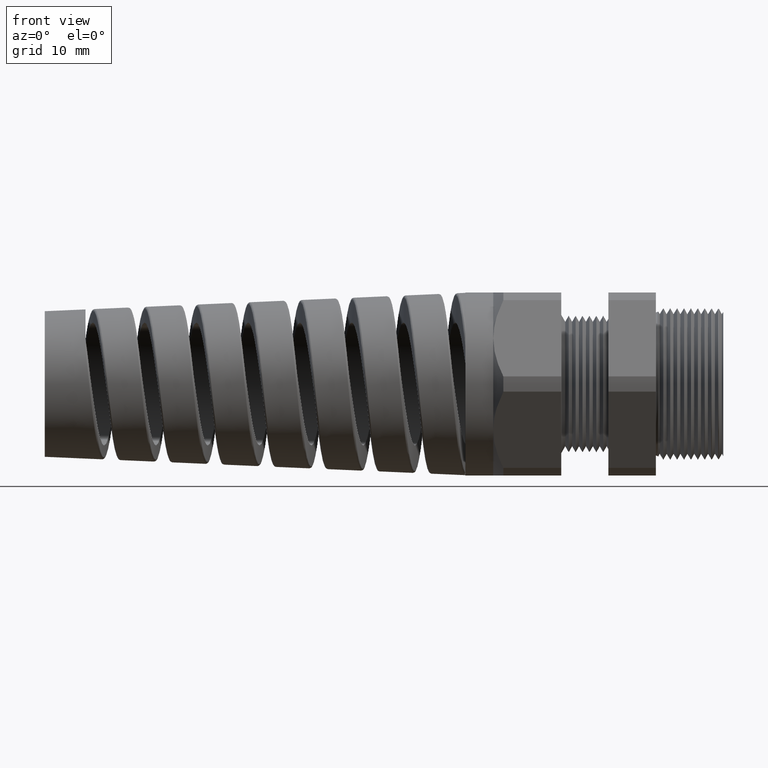
[diagram: clean part render]
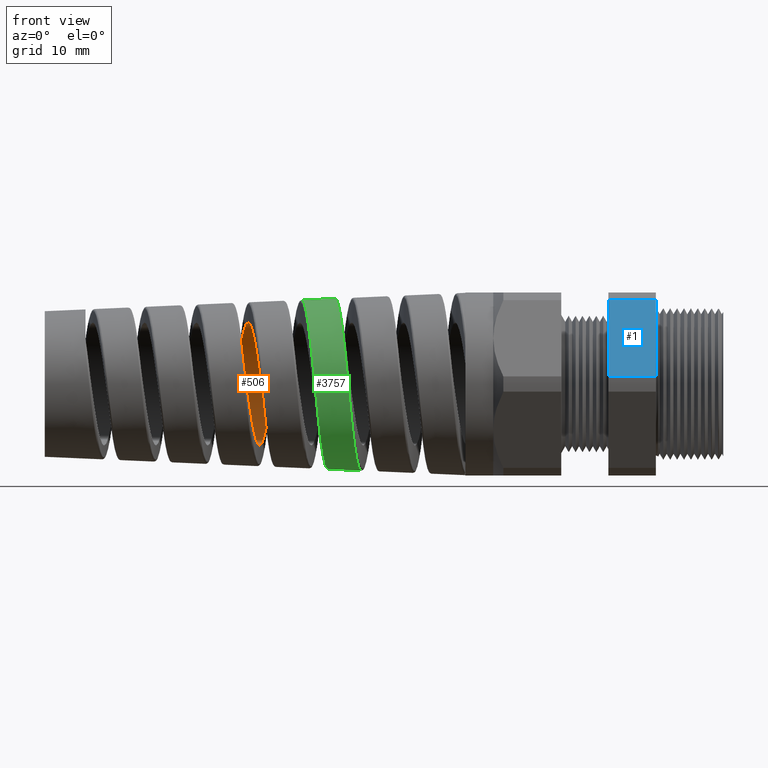
[diagram: same view with three faces highlighted in distinct colors, each labeled with its STEP entity id]
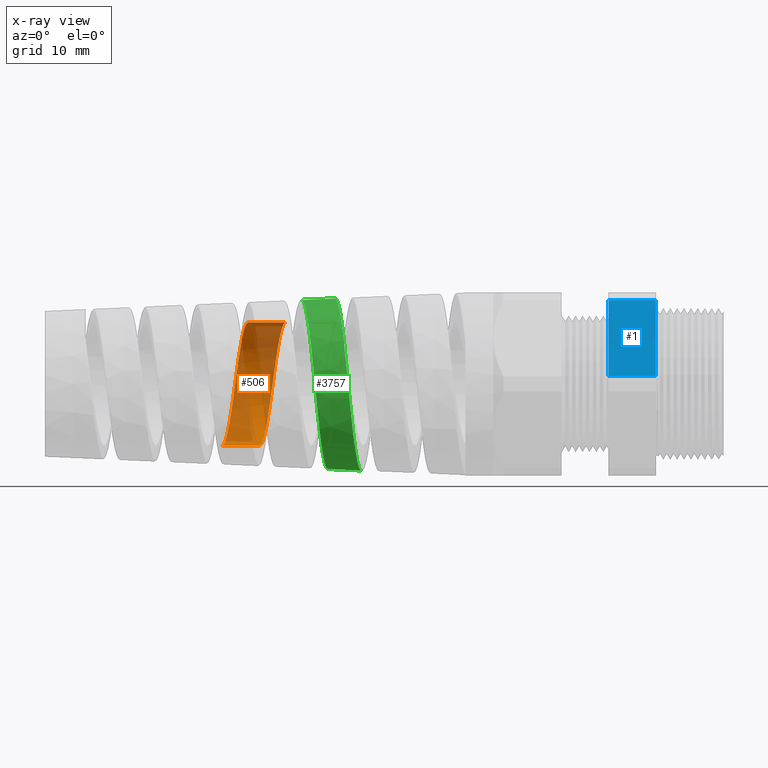
[diagram: x-ray of the same camera — body ghosted, the three highlighted faces saturated]
A machine part, front view with three faces highlighted in distinct colors.
The next image is the same camera in x-ray (body ghosted, the three faces saturated) — at least one of them is partly hidden behind the body in this view.
Their STEP definitions:

[orange] entity #506 — the highlighted cylindrical surface (partial cylindrical patch) has radius 9.0424 mm, axis along (1, 0, 0).
#431 = ORIENTED_EDGE ( 'NONE', *, *, #432, .T. ) ;
#432 = EDGE_CURVE ( 'NONE', #4030, #4079, #7712, .T. ) ;
#506 = ADVANCED_FACE ( 'NONE', ( #8227 ), #8255, .F. ) ;
#507 = EDGE_LOOP ( 'NONE', ( #508, #509, #511, #431 ) ) ;
#508 = ORIENTED_EDGE ( 'NONE', *, *, #4027, .F. ) ;
#509 = ORIENTED_EDGE ( 'NONE', *, *, #510, .T. ) ;
#510 = EDGE_CURVE ( 'NONE', #4081, #3956, #8250, .T. ) ;
#511 = ORIENTED_EDGE ( 'NONE', *, *, #4015, .T. ) ;
#3956 = VERTEX_POINT ( 'NONE', #11577 ) ;
#4015 = EDGE_CURVE ( 'NONE', #3956, #4030, #11892, .T. ) ;
#4027 = EDGE_CURVE ( 'NONE', #4081, #4079, #11970, .T. ) ;
#4030 = VERTEX_POINT ( 'NONE', #11966 ) ;
#4079 = VERTEX_POINT ( 'NONE', #12211 ) ;
#4081 = VERTEX_POINT ( 'NONE', #12278 ) ;
#7704 = CARTESIAN_POINT ( 'NONE',  ( -2.588058300756999500, 0.1255374151911246600, -0.3333363265361589700 ) ) ;
#7705 = CARTESIAN_POINT ( 'NONE',  ( -2.589640082266339200, 0.1144257403103962300, -0.3373110450831110500 ) ) ;
#7706 = CARTESIAN_POINT ( 'NONE',  ( -2.592769721519402500, 0.09210546711105217800, -0.3440764073703654900 ) ) ;
#7707 = CARTESIAN_POINT ( 'NONE',  ( -2.595882672592794800, 0.06957135075506019900, -0.3497119567977191000 ) ) ;
#7708 = CARTESIAN_POINT ( 'NONE',  ( -2.598992154035647300, 0.04662076965795574500, -0.3531259007206738500 ) ) ;
#7709 = CARTESIAN_POINT ( 'NONE',  ( -2.602114730385442200, 0.02346165782294322100, -0.3554165844969625100 ) ) ;
#7710 = CARTESIAN_POINT ( 'NONE',  ( -2.603688644498007900, 0.01173199416358084800, -0.3559999999999806700 ) ) ;
#7711 = CARTESIAN_POINT ( 'NONE',  ( -2.605262965233127400, 5.842345059044108700E-013, -0.3559999999999999800 ) ) ;
#7712 = B_SPLINE_CURVE_WITH_KNOTS ( 'NONE', 3,
 ( #7711, #7710, #7709, #7708, #7707, #7706, #7705, #7704, #7777, #7776, #7775, #7774, #7773, #7772, #7771, #7770, #7769, #7768, #7767, #7766, #7765, #7764, #7763, #7762, #7761, #7760, #7759, #7758, #7757, #7756, #7755, #7754, #7753, #7752, #7751, #7750, #7749, #7748, #7747, #7746, #7745, #7744, #7743, #7742, #7741 ),
 .UNSPECIFIED., .F., .F.,
 ( 4, 2, 1, 2, 2, 2, 2, 2, 2, 2, 2, 2, 2, 2, 2, 2, 2, 2, 2, 2, 2, 2, 4 ),
 ( 0.1913456243594174600, 0.1922352419578659000, 0.1931248595563143400, 0.1940144771547627800, 0.1949040947532112200, 0.1966833299501081200, 0.1984625651470050000, 0.2002418003439018800, 0.2011314179423503200, 0.2020210355407987500, 0.2038002707376956300, 0.2055795059345925400, 0.2064691235330409800, 0.2073587411314893900, 0.2091379763283862900, 0.2109172115252831700, 0.2126964467221800500, 0.2135860643206284900, 0.2144756819190769500, 0.2162549171159738300, 0.2180341523128707400, 0.2189237699113191800, 0.2198133875097676400 ),
 .UNSPECIFIED. ) ;
#7741 = CARTESIAN_POINT ( 'NONE',  ( -2.455194617607312500, 4.797850723997763300E-013, 0.3559999999999998200 ) ) ;
#7742 = CARTESIAN_POINT ( 'NONE',  ( -2.456758964248498200, 0.01165908351804917700, 0.3559999999999843300 ) ) ;
#7743 = CARTESIAN_POINT ( 'NONE',  ( -2.458340073502764100, 0.02344329785348109000, 0.3554197981418403300 ) ) ;
#7744 = CARTESIAN_POINT ( 'NONE',  ( -2.461479002432248400, 0.04672353271327530500, 0.3531143336317927300 ) ) ;
#7745 = CARTESIAN_POINT ( 'NONE',  ( -2.463038256526357600, 0.05823092676476685600, 0.3513968394085299500 ) ) ;
#7746 = CARTESIAN_POINT ( 'NONE',  ( -2.467708383377984000, 0.09236170625915128600, 0.3445919812323701100 ) ) ;
#7747 = CARTESIAN_POINT ( 'NONE',  ( -2.470810512429312000, 0.1145975589729101000, 0.3378678886742327900 ) ) ;
#7748 = CARTESIAN_POINT ( 'NONE',  ( -2.477111267551890700, 0.1579800309239773900, 0.3198900132060901700 ) ) ;
#7749 = CARTESIAN_POINT ( 'NONE',  ( -2.480227827331087800, 0.1785490667816322700, 0.3088591541507040300 ) ) ;
#7750 = CARTESIAN_POINT ( 'NONE',  ( -2.484895547855639800, 0.2074679768682410100, 0.2895297483196138700 ) ) ;
#7751 = CARTESIAN_POINT ( 'NONE',  ( -2.486452567330835500, 0.2168007962505145200, 0.2826119879218528300 ) ) ;
#7752 = CARTESIAN_POINT ( 'NONE',  ( -2.489583540434637100, 0.2348396398335701700, 0.2678105011660998300 ) ) ;
#7753 = CARTESIAN_POINT ( 'NONE',  ( -2.491165626985470300, 0.2435862608103514000, 0.2598813774041983100 ) ) ;
#7754 = CARTESIAN_POINT ( 'NONE',  ( -2.495870048659745200, 0.2683676136725935400, 0.2350770321404555800 ) ) ;
#7755 = CARTESIAN_POINT ( 'NONE',  ( -2.498967883353122600, 0.2830711092299750800, 0.2171331110047142200 ) ) ;
#7756 = CARTESIAN_POINT ( 'NONE',  ( -2.505204721888603500, 0.3088964461710150800, 0.1784909698505535200 ) ) ;
#7757 = CARTESIAN_POINT ( 'NONE',  ( -2.508371039982964400, 0.3200714167107469600, 0.1575784303674544800 ) ) ;
#7758 = CARTESIAN_POINT ( 'NONE',  ( -2.514610782130706200, 0.3378493239893885500, 0.1146058802688953900 ) ) ;
#7759 = CARTESIAN_POINT ( 'NONE',  ( -2.517708166779331500, 0.3445884227954659800, 0.09241263041882284700 ) ) ;
#7760 = CARTESIAN_POINT ( 'NONE',  ( -2.522408301282094400, 0.3514275776553766300, 0.05806011117516423500 ) ) ;
#7761 = CARTESIAN_POINT ( 'NONE',  ( -2.523990848902510000, 0.3531591033938716300, 0.04637921325243144600 ) ) ;
#7762 = CARTESIAN_POINT ( 'NONE',  ( -2.527124703250969200, 0.3554394418804833200, 0.02313410658677568900 ) ) ;
#7763 = CARTESIAN_POINT ( 'NONE',  ( -2.528682371298846700, 0.3560023499608324600, 0.01152418667711453300 ) ) ;
#7764 = CARTESIAN_POINT ( 'NONE',  ( -2.533350321565377000, 0.3559952780125688100, -0.02326547350838919700 ) ) ;
#7765 = CARTESIAN_POINT ( 'NONE',  ( -2.536457433106064800, 0.3537425288732004000, -0.04642229489545348500 ) ) ;
#7766 = CARTESIAN_POINT ( 'NONE',  ( -2.542767214148643300, 0.3445647304205294900, -0.09254162710475337400 ) ) ;
#7767 = CARTESIAN_POINT ( 'NONE',  ( -2.545870425009987100, 0.3377882780981756300, -0.1147742022997402200 ) ) ;
#7768 = CARTESIAN_POINT ( 'NONE',  ( -2.550538968514637800, 0.3244763503929402600, -0.1469204125341193300 ) ) ;
#7769 = CARTESIAN_POINT ( 'NONE',  ( -2.552097281704470300, 0.3195106909237094800, -0.1574339433295144900 ) ) ;
#7770 = CARTESIAN_POINT ( 'NONE',  ( -2.555233208672073300, 0.3084996587719225900, -0.1780463104488109500 ) ) ;
#7771 = CARTESIAN_POINT ( 'NONE',  ( -2.556815673891971000, 0.3024286926234400200, -0.1881729729598848600 ) ) ;
#7772 = CARTESIAN_POINT ( 'NONE',  ( -2.561513160536102300, 0.2829697337934694000, -0.2172759932776563400 ) ) ;
#7773 = CARTESIAN_POINT ( 'NONE',  ( -2.564609771302916100, 0.2682509019515763600, -0.2351988208704081100 ) ) ;
#7774 = CARTESIAN_POINT ( 'NONE',  ( -2.570851865881368600, 0.2353664511366112300, -0.2681038332736436800 ) ) ;
#7775 = CARTESIAN_POINT ( 'NONE',  ( -2.574018494357527100, 0.2170386431017708700, -0.2831430204070185500 ) ) ;
#7776 = CARTESIAN_POINT ( 'NONE',  ( -2.580252930685929000, 0.1783990444583968800, -0.3089490630201007200 ) ) ;
#7777 = CARTESIAN_POINT ( 'NONE',  ( -2.583350834729506200, 0.1579446371576399800, -0.3199007477313860500 ) ) ;
#8227 = FACE_OUTER_BOUND ( 'NONE', #507, .T. ) ;
#8238 = CARTESIAN_POINT ( 'NONE',  ( -2.712871846001793300, 0.2683967611726232300, 0.2350566343029512900 ) ) ;
#8239 = CARTESIAN_POINT ( 'NONE',  ( -2.706569610542169700, 0.2351635669462939500, 0.2683030740019231600 ) ) ;
#8240 = CARTESIAN_POINT ( 'NONE',  ( -2.703469243143174600, 0.2171833814658454300, 0.2830294006592599100 ) ) ;
#8241 = CARTESIAN_POINT ( 'NONE',  ( -2.698804113444630600, 0.1882551323016893600, 0.3023748846509795600 ) ) ;
#8242 = CARTESIAN_POINT ( 'NONE',  ( -2.697246743610998800, 0.1782836848846134900, 0.3083627526450868900 ) ) ;
#8243 = CARTESIAN_POINT ( 'NONE',  ( -2.694112416002199400, 0.1576697091581493200, 0.3193946185033113000 ) ) ;
#8244 = CARTESIAN_POINT ( 'NONE',  ( -2.692531378505624900, 0.1469974380314877900, 0.3244439611646978700 ) ) ;
#8245 = CARTESIAN_POINT ( 'NONE',  ( -2.687838801437250500, 0.1146586132422661600, 0.3378371283704689800 ) ) ;
#8246 = CARTESIAN_POINT ( 'NONE',  ( -2.684744743560596900, 0.09246309314700303100, 0.3445692855413835500 ) ) ;
#8247 = CARTESIAN_POINT ( 'NONE',  ( -2.678506281864904400, 0.04682558629164183800, 0.3536732681462578200 ) ) ;
#8248 = CARTESIAN_POINT ( 'NONE',  ( -2.675342649173015900, 0.02323129742777716900, 0.3560000000000088600 ) ) ;
#8249 = CARTESIAN_POINT ( 'NONE',  ( -2.672228253862314800, -1.328104976169842200E-013, 0.3560000000000002100 ) ) ;
#8250 = B_SPLINE_CURVE_WITH_KNOTS ( 'NONE', 3,
 ( #8249, #8248, #8247, #8246, #8245, #8244, #8243, #8242, #8241, #8240, #8239, #8238, #8313, #8312, #8311, #8310, #8309, #8308, #8307, #8306, #8305, #8304, #8303, #8302, #8301, #8300, #8299, #8298, #8297, #8296, #8295, #8294, #8293, #8292, #8291, #8290, #8289, #8288, #8287, #8286, #8285, #8284 ),
 .UNSPECIFIED., .F., .F.,
 ( 4, 2, 2, 2, 2, 2, 2, 2, 2, 2, 2, 2, 2, 2, 2, 2, 2, 2, 2, 2, 4 ),
 ( 0.2555521806162086600, 0.2573350309079793800, 0.2591178811997501600, 0.2600093063456355200, 0.2609007314915208800, 0.2626835817832916000, 0.2644664320750623200, 0.2653578572209476800, 0.2662492823668330400, 0.2680321326586038200, 0.2698149829503745400, 0.2715978332421452600, 0.2724892583880306200, 0.2733806835339159800, 0.2751635338256867000, 0.2769463841174574800, 0.2778378092633428400, 0.2787292344092282000, 0.2805120847009989200, 0.2822949349927697000, 0.2840777852845404200 ),
 .UNSPECIFIED. ) ;
#8251 = DIRECTION ( 'NONE',  ( 0.0000000000000000000, 0.0000000000000000000, -1.000000000000000000 ) ) ;
#8252 = DIRECTION ( 'NONE',  ( 1.000000000000000000, 0.0000000000000000000, 0.0000000000000000000 ) ) ;
#8253 = CARTESIAN_POINT ( 'NONE',  ( 0.09602717987635048200, 0.0000000000000000000, 0.0000000000000000000 ) ) ;
#8254 = AXIS2_PLACEMENT_3D ( 'NONE', #8253, #8252, #8251 ) ;
#8255 = CYLINDRICAL_SURFACE ( 'NONE', #8254, 0.3559999999999999800 ) ;
#8284 = CARTESIAN_POINT ( 'NONE',  ( -2.822159956129014700, 4.852839836151481800E-013, -0.3560000000000000900 ) ) ;
#8285 = CARTESIAN_POINT ( 'NONE',  ( -2.819021819547832000, 0.02340949502332323500, -0.3559999999999683400 ) ) ;
#8286 = CARTESIAN_POINT ( 'NONE',  ( -2.815925157162083400, 0.04650602325123237600, -0.3537127300167002300 ) ) ;
#8287 = CARTESIAN_POINT ( 'NONE',  ( -2.809697390097454200, 0.09207215863489387500, -0.3446711812420965000 ) ) ;
#8288 = CARTESIAN_POINT ( 'NONE',  ( -2.806534863695327800, 0.1147592199642840800, -0.3377987681894283900 ) ) ;
#8289 = CARTESIAN_POINT ( 'NONE',  ( -2.800294772739699000, 0.1577628593627296800, -0.3199821347556792700 ) ) ;
#8290 = CARTESIAN_POINT ( 'NONE',  ( -2.797200202759958300, 0.1782222537088115600, -0.3090582355348829900 ) ) ;
#8291 = CARTESIAN_POINT ( 'NONE',  ( -2.792509383668043900, 0.2073265739947740000, -0.2896337909893030900 ) ) ;
#8292 = CARTESIAN_POINT ( 'NONE',  ( -2.790929040594535100, 0.2168098431521451000, -0.2826061887351118400 ) ) ;
#8293 = CARTESIAN_POINT ( 'NONE',  ( -2.787793664414399700, 0.2348897803745577900, -0.2677677297110974700 ) ) ;
#8294 = CARTESIAN_POINT ( 'NONE',  ( -2.786235965763902600, 0.2435071117495804800, -0.2599516833510279200 ) ) ;
#8295 = CARTESIAN_POINT ( 'NONE',  ( -2.781570209887111100, 0.2681191232358248200, -0.2353433669213471600 ) ) ;
#8296 = CARTESIAN_POINT ( 'NONE',  ( -2.778469848047620900, 0.2828856713930608700, -0.2174019290316200900 ) ) ;
#8297 = CARTESIAN_POINT ( 'NONE',  ( -2.772171272658247300, 0.3090010518207686500, -0.1783430733160978100 ) ) ;
#8298 = CARTESIAN_POINT ( 'NONE',  ( -2.769060175600740700, 0.3199751102197548900, -0.1577652059249336800 ) ) ;
#8299 = CARTESIAN_POINT ( 'NONE',  ( -2.764396290099594200, 0.3332989239104294800, -0.1256276647889313600 ) ) ;
#8300 = CARTESIAN_POINT ( 'NONE',  ( -2.762840170570397500, 0.3372218632710287100, -0.1146893645844773000 ) ) ;
#8301 = CARTESIAN_POINT ( 'NONE',  ( -2.759710569221188500, 0.3440100949561861700, -0.09235415521248231700 ) ) ;
#8302 = CARTESIAN_POINT ( 'NONE',  ( -2.758129407493230100, 0.3468828759323221400, -0.08090001860906004300 ) ) ;
#8303 = CARTESIAN_POINT ( 'NONE',  ( -2.753430151347194200, 0.3537205881253522300, -0.04651791096292925300 ) ) ;
#8304 = CARTESIAN_POINT ( 'NONE',  ( -2.750335237239457200, 0.3559879972746894900, -0.02342898587798301900 ) ) ;
#8305 = CARTESIAN_POINT ( 'NONE',  ( -2.744102333568295900, 0.3560119085573247300, 0.02306279576040249500 ) ) ;
#8306 = CARTESIAN_POINT ( 'NONE',  ( -2.740938026628621000, 0.3536934761794672300, 0.04666398048186461800 ) ) ;
#8307 = CARTESIAN_POINT ( 'NONE',  ( -2.734704423837953000, 0.3446193904982260400, 0.09227176089659572300 ) ) ;
#8308 = CARTESIAN_POINT ( 'NONE',  ( -2.731609644567114100, 0.3379009407361932000, 0.1144758483443580200 ) ) ;
#8309 = CARTESIAN_POINT ( 'NONE',  ( -2.726911596356519600, 0.3245076576625156600, 0.1468578275732302700 ) ) ;
#8310 = CARTESIAN_POINT ( 'NONE',  ( -2.725330183382749500, 0.3194605779817840700, 0.1575349802189352500 ) ) ;
#8311 = CARTESIAN_POINT ( 'NONE',  ( -2.722199657900354900, 0.3084514694989680700, 0.1781292279244567600 ) ) ;
#8312 = CARTESIAN_POINT ( 'NONE',  ( -2.720643488937810200, 0.3024732972460671400, 0.1880967917125647700 ) ) ;
#8313 = CARTESIAN_POINT ( 'NONE',  ( -2.715979568945030600, 0.2831480124816568300, 0.2170281028474377000 ) ) ;
#11577 = CARTESIAN_POINT ( 'NONE',  ( -2.822159956129014700, 4.852839836151481800E-013, -0.3560000000000000900 ) ) ;
#11885 = DIRECTION ( 'NONE',  ( 1.000000000000000000, 0.0000000000000000000, 0.0000000000000000000 ) ) ;
#11886 = VECTOR ( 'NONE', #11885, 39.37007874015748100 ) ;
#11887 = CARTESIAN_POINT ( 'NONE',  ( 0.09602717987635048200, 0.0000000000000000000, -0.3559999999999999800 ) ) ;
#11892 = LINE ( 'NONE', #11887, #11886 ) ;
#11966 = CARTESIAN_POINT ( 'NONE',  ( -2.605262965233127400, 5.842345059044108700E-013, -0.3559999999999999800 ) ) ;
#11967 = DIRECTION ( 'NONE',  ( 1.000000000000000000, 0.0000000000000000000, 0.0000000000000000000 ) ) ;
#11968 = VECTOR ( 'NONE', #11967, 39.37007874015748100 ) ;
#11969 = CARTESIAN_POINT ( 'NONE',  ( 0.09602717987635048200, 4.359742604964577000E-017, 0.3559999999999999800 ) ) ;
#11970 = LINE ( 'NONE', #11969, #11968 ) ;
#12211 = CARTESIAN_POINT ( 'NONE',  ( -2.455194617607312500, 4.797850723997763300E-013, 0.3559999999999998200 ) ) ;
#12278 = CARTESIAN_POINT ( 'NONE',  ( -2.672228253862314800, -1.328104976169842200E-013, 0.3560000000000002100 ) ) ;

[blue] entity #1 — the highlighted planar face has unit normal (0, -0.866, 0.5).
#1 = ADVANCED_FACE ( 'NONE', ( #4056 ), #4055, .T. ) ;
#2 = ORIENTED_EDGE ( 'NONE', *, *, #31, .F. ) ;
#3 = EDGE_LOOP ( 'NONE', ( #2, #5, #4, #803 ) ) ;
#4 = ORIENTED_EDGE ( 'NONE', *, *, #6, .T. ) ;
#5 = ORIENTED_EDGE ( 'NONE', *, *, #176, .F. ) ;
#6 = EDGE_CURVE ( 'NONE', #174, #802, #4049, .T. ) ;
#13 = VERTEX_POINT ( 'NONE', #4118 ) ;
#31 = EDGE_CURVE ( 'NONE', #177, #13, #4109, .T. ) ;
#174 = VERTEX_POINT ( 'NONE', #7526 ) ;
#176 = EDGE_CURVE ( 'NONE', #174, #177, #7525, .T. ) ;
#177 = VERTEX_POINT ( 'NONE', #7521 ) ;
#791 = EDGE_CURVE ( 'NONE', #13, #802, #9144, .T. ) ;
#802 = VERTEX_POINT ( 'NONE', #9193 ) ;
#803 = ORIENTED_EDGE ( 'NONE', *, *, #791, .F. ) ;
#4047 = VECTOR ( 'NONE', #4122, 39.37007874015748100 ) ;
#4048 = CARTESIAN_POINT ( 'NONE',  ( 0.08000000000000023800, -0.3313250556190262000, 0.4861281698472627600 ) ) ;
#4049 = LINE ( 'NONE', #4048, #4047 ) ;
#4051 = DIRECTION ( 'NONE',  ( 0.0000000000000000000, -0.4999999999999998300, -0.8660254037844388200 ) ) ;
#4052 = DIRECTION ( 'NONE',  ( 0.0000000000000000000, -0.8660254037844388200, 0.4999999999999998300 ) ) ;
#4053 = CARTESIAN_POINT ( 'NONE',  ( 0.08000000000000023800, -0.5866618723924791300, 0.04387183015273706000 ) ) ;
#4054 = AXIS2_PLACEMENT_3D ( 'NONE', #4053, #4052, #4051 ) ;
#4055 = PLANE ( 'NONE',  #4054 ) ;
#4056 = FACE_OUTER_BOUND ( 'NONE', #3, .T. ) ;
#4106 = DIRECTION ( 'NONE',  ( -1.000000000000000000, 0.0000000000000000000, 0.0000000000000000000 ) ) ;
#4107 = VECTOR ( 'NONE', #4106, 39.37007874015748100 ) ;
#4108 = CARTESIAN_POINT ( 'NONE',  ( 0.08000000000000023800, -0.5866618723924791300, 0.04387183015273703200 ) ) ;
#4109 = LINE ( 'NONE', #4108, #4107 ) ;
#4118 = CARTESIAN_POINT ( 'NONE',  ( -0.5855905511811022600, -0.5866618723924791300, 0.04387183015273703200 ) ) ;
#4122 = DIRECTION ( 'NONE',  ( -1.000000000000000000, 0.0000000000000000000, 0.0000000000000000000 ) ) ;
#7521 = CARTESIAN_POINT ( 'NONE',  ( -0.3100000000000000000, -0.5866618723924791300, 0.04387183015273703200 ) ) ;
#7522 = DIRECTION ( 'NONE',  ( 0.0000000000000000000, -0.4999999999999998300, -0.8660254037844388200 ) ) ;
#7523 = VECTOR ( 'NONE', #7522, 39.37007874015748100 ) ;
#7524 = CARTESIAN_POINT ( 'NONE',  ( -0.3100000000000000000, -0.1939934640057525700, 0.7239934640057522600 ) ) ;
#7525 = LINE ( 'NONE', #7524, #7523 ) ;
#7526 = CARTESIAN_POINT ( 'NONE',  ( -0.3100000000000000000, -0.3313250556190262000, 0.4861281698472627600 ) ) ;
#9142 = VECTOR ( 'NONE', #9206, 39.37007874015748100 ) ;
#9143 = CARTESIAN_POINT ( 'NONE',  ( -0.5855905511811022600, -0.1939934640057527100, 0.7239934640057522600 ) ) ;
#9144 = LINE ( 'NONE', #9143, #9142 ) ;
#9193 = CARTESIAN_POINT ( 'NONE',  ( -0.5855905511811022600, -0.3313250556190262000, 0.4861281698472627600 ) ) ;
#9206 = DIRECTION ( 'NONE',  ( 0.0000000000000000000, 0.4999999999999998300, 0.8660254037844388200 ) ) ;

[green] entity #3757 — the highlighted conical surface has half-angle 2.5 deg.
#3745 = EDGE_CURVE ( 'NONE', #3878, #3890, #10100, .T. ) ;
#3746 = EDGE_CURVE ( 'NONE', #3887, #3871, #10132, .T. ) ;
#3757 = ADVANCED_FACE ( 'NONE', ( #10219 ), #10345, .T. ) ;
#3758 = EDGE_LOOP ( 'NONE', ( #3759, #3822, #3824, #3816 ) ) ;
#3759 = ORIENTED_EDGE ( 'NONE', *, *, #3889, .F. ) ;
#3816 = ORIENTED_EDGE ( 'NONE', *, *, #3745, .T. ) ;
#3822 = ORIENTED_EDGE ( 'NONE', *, *, #3746, .T. ) ;
#3824 = ORIENTED_EDGE ( 'NONE', *, *, #3880, .T. ) ;
#3871 = VERTEX_POINT ( 'NONE', #10899 ) ;
#3878 = VERTEX_POINT ( 'NONE', #10678 ) ;
#3880 = EDGE_CURVE ( 'NONE', #3871, #3878, #10676, .T. ) ;
#3887 = VERTEX_POINT ( 'NONE', #11035 ) ;
#3889 = EDGE_CURVE ( 'NONE', #3887, #3890, #11053, .T. ) ;
#3890 = VERTEX_POINT ( 'NONE', #11049 ) ;
#10058 = CARTESIAN_POINT ( 'NONE',  ( -2.137965897996970500, -0.2906283891790600300, 0.4028413230129057600 ) ) ;
#10059 = CARTESIAN_POINT ( 'NONE',  ( -2.136403034704178700, -0.3037147281775621800, 0.3931603644316561400 ) ) ;
#10060 = CARTESIAN_POINT ( 'NONE',  ( -2.133258538174852800, -0.3290210502620022900, 0.3724234373861434200 ) ) ;
#10061 = CARTESIAN_POINT ( 'NONE',  ( -2.131671804358067600, -0.3412729738382395100, 0.3613239325853367400 ) ) ;
#10062 = CARTESIAN_POINT ( 'NONE',  ( -2.126962296454944400, -0.3759266743866878600, 0.3266596159679717700 ) ) ;
#10063 = CARTESIAN_POINT ( 'NONE',  ( -2.123859010652847400, -0.3965123720425815500, 0.3015509590627010700 ) ) ;
#10064 = CARTESIAN_POINT ( 'NONE',  ( -2.119169470237253000, -0.4236505085154251800, 0.2609278223129933800 ) ) ;
#10065 = CARTESIAN_POINT ( 'NONE',  ( -2.117595857609861900, -0.4320914357926447000, 0.2468469787851209100 ) ) ;
#10066 = CARTESIAN_POINT ( 'NONE',  ( -2.114441236771424900, -0.4475692867391858300, 0.2178421415646317700 ) ) ;
#10067 = CARTESIAN_POINT ( 'NONE',  ( -2.112876529820654900, -0.4545301856097557800, 0.2030713550863270400 ) ) ;
#10068 = CARTESIAN_POINT ( 'NONE',  ( -2.108196842557551700, -0.4731533025308365900, 0.1579818482447574400 ) ) ;
#10069 = CARTESIAN_POINT ( 'NONE',  ( -2.105097248834057100, -0.4825770365884580200, 0.1268931251979530100 ) ) ;
#10070 = CARTESIAN_POINT ( 'NONE',  ( -2.100388247414732800, -0.4921279659234514800, 0.07869227019877786400 ) ) ;
#10071 = CARTESIAN_POINT ( 'NONE',  ( -2.098807592254914300, -0.4945317434452180500, 0.06235086537074831200 ) ) ;
#10072 = CARTESIAN_POINT ( 'NONE',  ( -2.095680385999257700, -0.4976883263864224600, 0.02986073963989358700 ) ) ;
#10073 = CARTESIAN_POINT ( 'NONE',  ( -2.094125003502254100, -0.4984621775340909400, 0.01362197324743450400 ) ) ;
#10074 = CARTESIAN_POINT ( 'NONE',  ( -2.091015961837691800, -0.4984279396465892700, -0.01884178774710237200 ) ) ;
#10075 = CARTESIAN_POINT ( 'NONE',  ( -2.089462475693839600, -0.4976198233943618900, -0.03506679875822924600 ) ) ;
#10076 = CARTESIAN_POINT ( 'NONE',  ( -2.086342662653632600, -0.4944032425371655500, -0.06750148540744664600 ) ) ;
#10077 = CARTESIAN_POINT ( 'NONE',  ( -2.084769155411423800, -0.4919791824320600100, -0.08378503658864795700 ) ) ;
#10078 = CARTESIAN_POINT ( 'NONE',  ( -2.080057292838782600, -0.4823202575480982600, -0.1320770379713764300 ) ) ;
#10079 = CARTESIAN_POINT ( 'NONE',  ( -2.076962923187026400, -0.4728279061895956400, -0.1631679382762953300 ) ) ;
#10080 = CARTESIAN_POINT ( 'NONE',  ( -2.072302592056910700, -0.4541554200993848100, -0.2081924140318209300 ) ) ;
#10081 = CARTESIAN_POINT ( 'NONE',  ( -2.070746307178754200, -0.4471869494500385600, -0.2229300262814043200 ) ) ;
#10082 = CARTESIAN_POINT ( 'NONE',  ( -2.067612544940617500, -0.4317212419859045600, -0.2518479947166860100 ) ) ;
#10083 = CARTESIAN_POINT ( 'NONE',  ( -2.066038534106312800, -0.4232318439283843100, -0.2659910643905295500 ) ) ;
#10084 = CARTESIAN_POINT ( 'NONE',  ( -2.061364939568459200, -0.3960283882850272300, -0.3066591797455376900 ) ) ;
#10085 = CARTESIAN_POINT ( 'NONE',  ( -2.058279382892390000, -0.3754345937579892100, -0.3317553845094183800 ) ) ;
#10086 = CARTESIAN_POINT ( 'NONE',  ( -2.053609853101566500, -0.3408661754212760600, -0.3663729608970711600 ) ) ;
#10087 = CARTESIAN_POINT ( 'NONE',  ( -2.052038127283818600, -0.3286574044649146500, -0.3774584613239611600 ) ) ;
#10088 = CARTESIAN_POINT ( 'NONE',  ( -2.048908922872082300, -0.3033142728508544400, -0.3982809744955191900 ) ) ;
#10089 = CARTESIAN_POINT ( 'NONE',  ( -2.047355681753559400, -0.2902214541892302300, -0.4079972039489062100 ) ) ;
#10090 = CARTESIAN_POINT ( 'NONE',  ( -2.042706894661902300, -0.2497161296582868200, -0.4351175720957393700 ) ) ;
#10091 = CARTESIAN_POINT ( 'NONE',  ( -2.039622455753594900, -0.2210882461060424700, -0.4505124384612539900 ) ) ;
#10092 = CARTESIAN_POINT ( 'NONE',  ( -2.034931060506482800, -0.1756456887304658800, -0.4694542805470138200 ) ) ;
#10093 = CARTESIAN_POINT ( 'NONE',  ( -2.033363598325827100, -0.1601462273804133700, -0.4750335672810687700 ) ) ;
#10094 = CARTESIAN_POINT ( 'NONE',  ( -2.030258425794779800, -0.1289701605714405100, -0.4845681336732299800 ) ) ;
#10095 = CARTESIAN_POINT ( 'NONE',  ( -2.027167769563764200, -0.09746973236944254900, -0.4925423114876067400 ) ) ;
#10096 = CARTESIAN_POINT ( 'NONE',  ( -2.024076482951221700, -0.06533178663270219900, -0.4974358501148498100 ) ) ;
#10097 = CARTESIAN_POINT ( 'NONE',  ( -2.020970529590265100, -0.03287161805036333000, -0.5007655564218577200 ) ) ;
#10098 = CARTESIAN_POINT ( 'NONE',  ( -2.019401688843614400, -0.01638902076667605300, -0.5016465099386855400 ) ) ;
#10099 = CARTESIAN_POINT ( 'NONE',  ( -2.017842514813689800, -6.848638462451441400E-013, -0.5017145849470122700 ) ) ;
#10100 = B_SPLINE_CURVE_WITH_KNOTS ( 'NONE', 3,
 ( #10099, #10098, #10097, #10096, #10095, #10094, #10093, #10092, #10091, #10090, #10089, #10088, #10087, #10086, #10085, #10084, #10083, #10082, #10081, #10080, #10079, #10078, #10077, #10076, #10075, #10074, #10073, #10072, #10071, #10070, #10069, #10068, #10067, #10066, #10065, #10064, #10063, #10062, #10061, #10060, #10059, #10058, #10141, #10140, #10139, #10138, #10137, #10136, #10135, #10134, #10133 ),
 .UNSPECIFIED., .F., .F.,
 ( 4, 2, 1, 2, 2, 2, 2, 2, 2, 2, 2, 2, 2, 2, 2, 2, 2, 2, 2, 2, 2, 2, 2, 2, 2, 4 ),
 ( 0.1635291858641698100, 0.1647792864953191200, 0.1660293871264684200, 0.1672794877576177200, 0.1685295883887670300, 0.1710297896510656300, 0.1722798902822149400, 0.1735299909133642400, 0.1760301921756628500, 0.1772802928068121500, 0.1785303934379614500, 0.1810305947002600600, 0.1822806953314093600, 0.1835307959625586700, 0.1847808965937079700, 0.1860309972248572800, 0.1885311984871558800, 0.1897812991183051900, 0.1910313997494544900, 0.1935316010117531000, 0.1947817016429024000, 0.1960318022740517000, 0.1985320035363503100, 0.2010322047986489200, 0.2022823054297982200, 0.2035324060609475200 ),
 .UNSPECIFIED. ) ;
#10101 = CARTESIAN_POINT ( 'NONE',  ( -2.257277562528408900, -0.4079174948588797900, -0.2751425398103519200 ) ) ;
#10102 = CARTESIAN_POINT ( 'NONE',  ( -2.260384337123129100, -0.4243781703473060200, -0.2477193332774996800 ) ) ;
#10103 = CARTESIAN_POINT ( 'NONE',  ( -2.263508771289566700, -0.4395361300074556700, -0.2193985282929917200 ) ) ;
#10104 = CARTESIAN_POINT ( 'NONE',  ( -2.265087905745378500, -0.4464918549238624500, -0.2047095146338194200 ) ) ;
#10105 = CARTESIAN_POINT ( 'NONE',  ( -2.269784488028470500, -0.4649720959536088900, -0.1601164958426296600 ) ) ;
#10106 = CARTESIAN_POINT ( 'NONE',  ( -2.272877773701460500, -0.4742432706170871000, -0.1295569974115656500 ) ) ;
#10107 = CARTESIAN_POINT ( 'NONE',  ( -2.279108913368003800, -0.4867859557611873300, -0.06681520029837513500 ) ) ;
#10108 = CARTESIAN_POINT ( 'NONE',  ( -2.282274324156248600, -0.4900120184971180100, -0.03433179148564825800 ) ) ;
#10109 = CARTESIAN_POINT ( 'NONE',  ( -2.288513392756008600, -0.4900430541179361400, 0.02968638985195439000 ) ) ;
#10110 = CARTESIAN_POINT ( 'NONE',  ( -2.291611305493199200, -0.4869518501333988100, 0.06146512872338597700 ) ) ;
#10111 = CARTESIAN_POINT ( 'NONE',  ( -2.296315894438575500, -0.4775896640454055400, 0.1087739667707167100 ) ) ;
#10112 = CARTESIAN_POINT ( 'NONE',  ( -2.297900259845631100, -0.4736497420184399000, 0.1245464773671152000 ) ) ;
#10113 = CARTESIAN_POINT ( 'NONE',  ( -2.301037489407943900, -0.4643269003044255800, 0.1553137378900434400 ) ) ;
#10114 = CARTESIAN_POINT ( 'NONE',  ( -2.302597179290197400, -0.4589368087320830900, 0.1703779333321524300 ) ) ;
#10115 = CARTESIAN_POINT ( 'NONE',  ( -2.307272263447820700, -0.4406252640605591300, 0.2146294457000134700 ) ) ;
#10116 = CARTESIAN_POINT ( 'NONE',  ( -2.310388433630149700, -0.4255542176724383400, 0.2429287624082703800 ) ) ;
#10117 = CARTESIAN_POINT ( 'NONE',  ( -2.316711424259904300, -0.3896046339935696500, 0.2967307181349701500 ) ) ;
#10118 = CARTESIAN_POINT ( 'NONE',  ( -2.319822836889681800, -0.3692760285501153200, 0.3214288115397921900 ) ) ;
#10119 = CARTESIAN_POINT ( 'NONE',  ( -2.324507029996885500, -0.3353902295694275400, 0.3552885877752291500 ) ) ;
#10120 = CARTESIAN_POINT ( 'NONE',  ( -2.326071166300091300, -0.3235253293968807800, 0.3660400692587965600 ) ) ;
#10121 = CARTESIAN_POINT ( 'NONE',  ( -2.329220447038097500, -0.2986294559754126800, 0.3864455547133994200 ) ) ;
#10122 = CARTESIAN_POINT ( 'NONE',  ( -2.330808774820035500, -0.2855659016710399000, 0.3961096909975863100 ) ) ;
#10123 = CARTESIAN_POINT ( 'NONE',  ( -2.335523430139819100, -0.2454735639896545300, 0.4228072704124561400 ) ) ;
#10124 = CARTESIAN_POINT ( 'NONE',  ( -2.338633591914254200, -0.2172912664397191100, 0.4378019610742404600 ) ) ;
#10125 = CARTESIAN_POINT ( 'NONE',  ( -2.343340824835283600, -0.1728577882656995000, 0.4561096230407697400 ) ) ;
#10126 = CARTESIAN_POINT ( 'NONE',  ( -2.344923394707696800, -0.1576202038749823200, 0.4615284180521003800 ) ) ;
#10127 = CARTESIAN_POINT ( 'NONE',  ( -2.348088651199377700, -0.1266870586328201500, 0.4708166232673046700 ) ) ;
#10128 = CARTESIAN_POINT ( 'NONE',  ( -2.349659713990576800, -0.1111080635731971200, 0.4746585635535776100 ) ) ;
#10129 = CARTESIAN_POINT ( 'NONE',  ( -2.354360759605348600, -0.06404598466031333200, 0.4838494831411323500 ) ) ;
#10130 = CARTESIAN_POINT ( 'NONE',  ( -2.357478713168858200, -0.03224089604828426400, 0.4868857482810038400 ) ) ;
#10131 = CARTESIAN_POINT ( 'NONE',  ( -2.360642178031954400, 6.088053702729461000E-013, 0.4867476284221823300 ) ) ;
#10132 = B_SPLINE_CURVE_WITH_KNOTS ( 'NONE', 3,
 ( #10131, #10130, #10129, #10128, #10127, #10126, #10125, #10124, #10123, #10122, #10121, #10120, #10119, #10118, #10117, #10116, #10115, #10114, #10113, #10112, #10111, #10110, #10109, #10108, #10107, #10106, #10105, #10104, #10103, #10102, #10101, #10182, #10181, #10180, #10179, #10178, #10177, #10176, #10175, #10174, #10173, #10172, #10171, #10170, #10169, #10168, #10167 ),
 .UNSPECIFIED., .F., .F.,
 ( 4, 2, 2, 2, 2, 2, 2, 2, 2, 2, 2, 2, 2, 2, 2, 1, 2, 2, 2, 2, 2, 2, 2, 4 ),
 ( 0.3104017385746370400, 0.3128795247864935600, 0.3141184178924218400, 0.3153573109983501300, 0.3178350972102066400, 0.3190739903161348700, 0.3203128834220631500, 0.3227906696339196700, 0.3252684558457762400, 0.3265073489517044700, 0.3277462420576327500, 0.3302240282694892700, 0.3327018144813457800, 0.3351796006932023000, 0.3364184937991305800, 0.3376573869050588100, 0.3388962800109870900, 0.3401351731169153200, 0.3426129593287718400, 0.3438518524347001200, 0.3450907455406283500, 0.3475685317524848700, 0.3488074248584131500, 0.3500463179643413800 ),
 .UNSPECIFIED. ) ;
#10133 = CARTESIAN_POINT ( 'NONE',  ( -2.167798487572967700, -5.500140585334693600E-013, 0.4951673657815789900 ) ) ;
#10134 = CARTESIAN_POINT ( 'NONE',  ( -2.166223784830141300, -0.01633585733030790500, 0.4952361187881132400 ) ) ;
#10135 = CARTESIAN_POINT ( 'NONE',  ( -2.164632400726182600, -0.03285005267092366100, 0.4944857763428465700 ) ) ;
#10136 = CARTESIAN_POINT ( 'NONE',  ( -2.161479194978539500, -0.06542367520593990500, 0.4913770955222325800 ) ) ;
#10137 = CARTESIAN_POINT ( 'NONE',  ( -2.159912794744956800, -0.08153232462280683700, 0.4890275506015203100 ) ) ;
#10138 = CARTESIAN_POINT ( 'NONE',  ( -2.155221110899380000, -0.1293338307038809400, 0.4796480421423832100 ) ) ;
#10139 = CARTESIAN_POINT ( 'NONE',  ( -2.152103857170242700, -0.1605074416386135000, 0.4703100417464969900 ) ) ;
#10140 = CARTESIAN_POINT ( 'NONE',  ( -2.145765604846152200, -0.2213969544967098500, 0.4452101503041850400 ) ) ;
#10141 = CARTESIAN_POINT ( 'NONE',  ( -2.142649604774932400, -0.2500997897114471400, 0.4298651122977154600 ) ) ;
#10167 = CARTESIAN_POINT ( 'NONE',  ( -2.210598118411750700, -6.395428061689885300E-013, -0.4932986935430215300 ) ) ;
#10168 = CARTESIAN_POINT ( 'NONE',  ( -2.212145778729237600, -0.01598475682169468700, -0.4932311212342370700 ) ) ;
#10169 = CARTESIAN_POINT ( 'NONE',  ( -2.213697822732242600, -0.03200960670873814100, -0.4923883373019106700 ) ) ;
#10170 = CARTESIAN_POINT ( 'NONE',  ( -2.216826007019880000, -0.06414055540960426900, -0.4891034506653843000 ) ) ;
#10171 = CARTESIAN_POINT ( 'NONE',  ( -2.218390776651430100, -0.08012841787001373500, -0.4866663396387326800 ) ) ;
#10172 = CARTESIAN_POINT ( 'NONE',  ( -2.223047656930031900, -0.1272324337180479300, -0.4771227521546389500 ) ) ;
#10173 = CARTESIAN_POINT ( 'NONE',  ( -2.226127883268124400, -0.1577570079434344500, -0.4677802428496385400 ) ) ;
#10174 = CARTESIAN_POINT ( 'NONE',  ( -2.230797650309376500, -0.2022100364913197200, -0.4492694078212600100 ) ) ;
#10175 = CARTESIAN_POINT ( 'NONE',  ( -2.232371259393240300, -0.2168815086828430300, -0.4422989013462045300 ) ) ;
#10176 = CARTESIAN_POINT ( 'NONE',  ( -2.235495602139506500, -0.2452546708840686900, -0.4270617611514022600 ) ) ;
#10177 = CARTESIAN_POINT ( 'NONE',  ( -2.237047898423041700, -0.2589755802856527600, -0.4187986164032147500 ) ) ;
#10178 = CARTESIAN_POINT ( 'NONE',  ( -2.241698000446791900, -0.2987731101125442000, -0.3921231838594209100 ) ) ;
#10179 = CARTESIAN_POINT ( 'NONE',  ( -2.244788565599458200, -0.3234976028267209100, -0.3718428684092466900 ) ) ;
#10180 = CARTESIAN_POINT ( 'NONE',  ( -2.249498221849262100, -0.3577659367965189100, -0.3375434197364269900 ) ) ;
#10181 = CARTESIAN_POINT ( 'NONE',  ( -2.251064945856272400, -0.3685975741302713300, -0.3255700181072779300 ) ) ;
#10182 = CARTESIAN_POINT ( 'NONE',  ( -2.254177100143226000, -0.3889018352701380000, -0.3008019465234575400 ) ) ;
#10219 = FACE_OUTER_BOUND ( 'NONE', #3758, .T. ) ;
#10341 = DIRECTION ( 'NONE',  ( 0.0000000000000000000, 0.0000000000000000000, -1.000000000000000000 ) ) ;
#10342 = DIRECTION ( 'NONE',  ( 1.000000000000000000, 0.0000000000000000000, 0.0000000000000000000 ) ) ;
#10343 = CARTESIAN_POINT ( 'NONE',  ( -1.369999999999999900, 0.0000000000000000000, 0.0000000000000000000 ) ) ;
#10344 = AXIS2_PLACEMENT_3D ( 'NONE', #10343, #10342, #10341 ) ;
#10345 = CONICAL_SURFACE ( 'NONE', #10344, 0.5299999999999999200, 0.04363323129985854900 ) ;
#10673 = DIRECTION ( 'NONE',  ( 0.9990482215818576900, 0.0000000000000000000, -0.04361938736533631200 ) ) ;
#10674 = VECTOR ( 'NONE', #10673, 39.37007874015748100 ) ;
#10675 = CARTESIAN_POINT ( 'NONE',  ( -1.369999999999999900, 0.0000000000000000000, -0.5299999999999999200 ) ) ;
#10676 = LINE ( 'NONE', #10675, #10674 ) ;
#10678 = CARTESIAN_POINT ( 'NONE',  ( -2.017842514813689800, -6.848638462451441400E-013, -0.5017145849470122700 ) ) ;
#10899 = CARTESIAN_POINT ( 'NONE',  ( -2.210598118411750700, -6.395428061689885300E-013, -0.4932986935430215300 ) ) ;
#11035 = CARTESIAN_POINT ( 'NONE',  ( -2.360642178031954400, 6.088053702729461000E-013, 0.4867476284221823300 ) ) ;
#11049 = CARTESIAN_POINT ( 'NONE',  ( -2.167798487572967700, -5.500140585334693600E-013, 0.4951673657815789900 ) ) ;
#11050 = DIRECTION ( 'NONE',  ( 0.9990482215818576900, 5.341834311772761800E-018, 0.04361938736533631200 ) ) ;
#11051 = VECTOR ( 'NONE', #11050, 39.37007874015748100 ) ;
#11052 = CARTESIAN_POINT ( 'NONE',  ( -1.369999999999999900, 6.490628035480970000E-017, 0.5299999999999999200 ) ) ;
#11053 = LINE ( 'NONE', #11052, #11051 ) ;